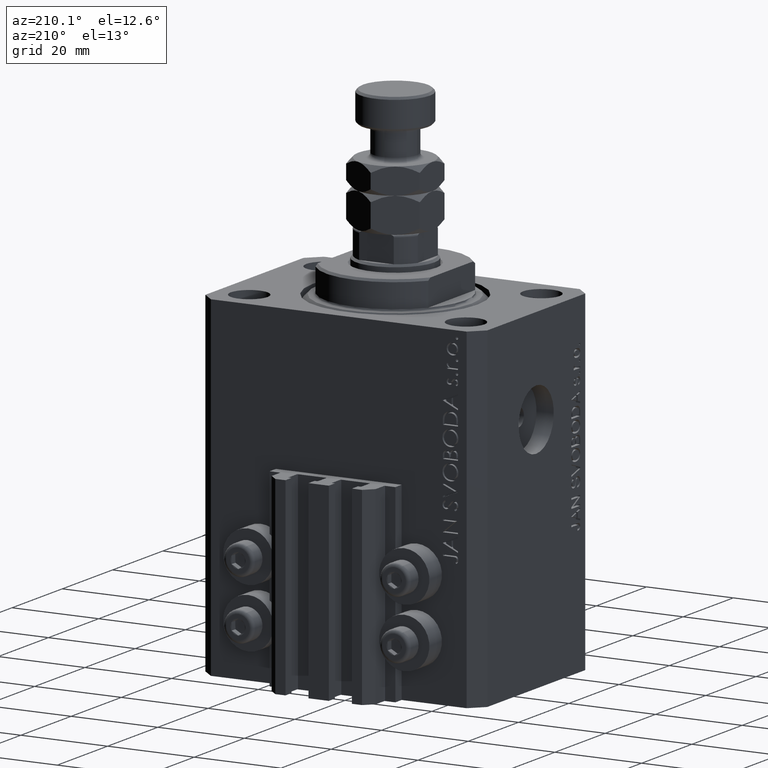
[diagram: clean part render]
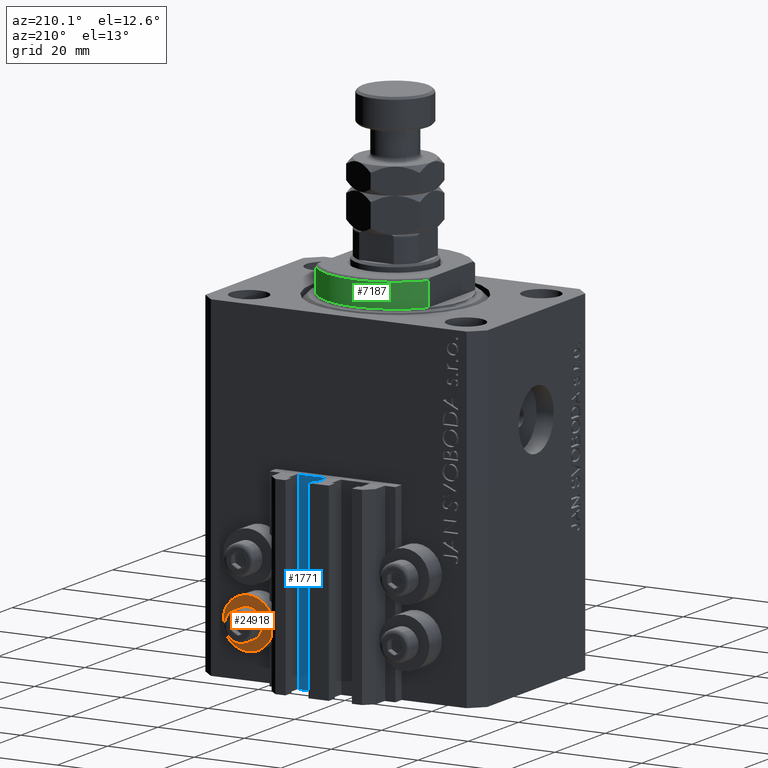
[diagram: same view with three faces highlighted in distinct colors, each labeled with its STEP entity id]
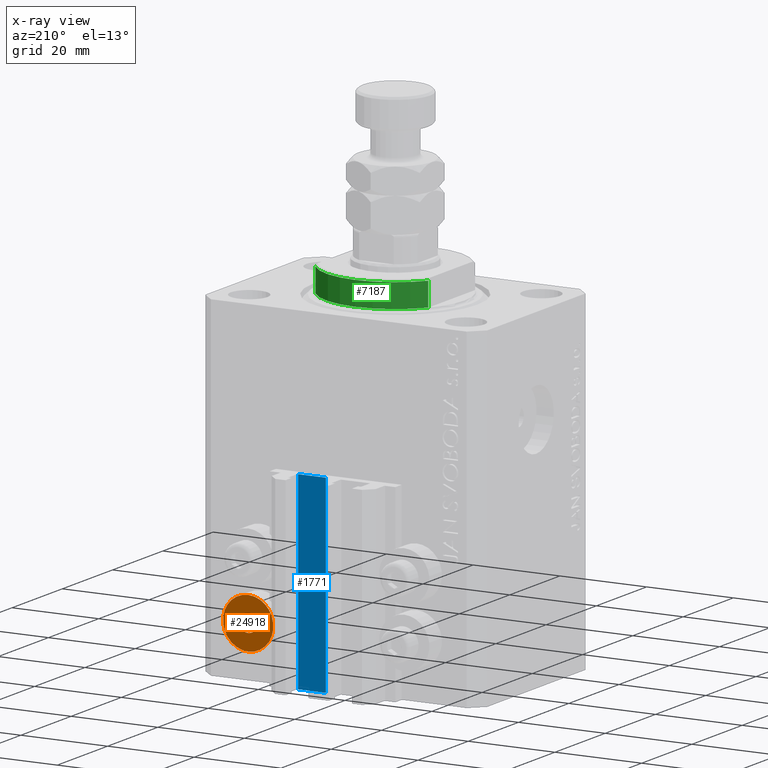
[diagram: x-ray of the same camera — body ghosted, the three highlighted faces saturated]
A machine part, auxiliary view with three faces highlighted in distinct colors.
The next image is the same camera in x-ray (body ghosted, the three faces saturated) — at least one of them is partly hidden behind the body in this view.
Their STEP definitions:

[orange] entity #24918 — the highlighted planar face has unit normal (0, -1, 0).
#29 = DIRECTION ( 'NONE',  ( 0.000000000000000000, 0.000000000000000000, -1.000000000000000000 ) ) ;
#640 = CIRCLE ( 'NONE', #30794, 2.000000000000001776 ) ;
#1529 = ORIENTED_EDGE ( 'NONE', *, *, #9022, .F. ) ;
#2904 = PLANE ( 'NONE',  #46904 ) ;
#3316 = CARTESIAN_POINT ( 'NONE',  ( 18.00000000000000355, 27.49999999996051514, -58.20000000000000284 ) ) ;
#3780 = AXIS2_PLACEMENT_3D ( 'NONE', #15403, #23101, #29 ) ;
#4173 = VERTEX_POINT ( 'NONE', #14786 ) ;
#8506 = ORIENTED_EDGE ( 'NONE', *, *, #22166, .T. ) ;
#8831 = CIRCLE ( 'NONE', #31838, 5.799999999999999822 ) ;
#9022 = EDGE_CURVE ( 'NONE', #9466, #32617, #40243, .T. ) ;
#9466 = VERTEX_POINT ( 'NONE', #15243 ) ;
#11349 = DIRECTION ( 'NONE',  ( 0.000000000000000000, -1.000000000000000000, 0.000000000000000000 ) ) ;
#11659 = CARTESIAN_POINT ( 'NONE',  ( 18.00000000000000355, 27.49999999996051514, -64.00000000000000000 ) ) ;
#13015 = DIRECTION ( 'NONE',  ( 0.000000000000000000, 1.000000000000000000, 0.000000000000000000 ) ) ;
#13245 = EDGE_CURVE ( 'NONE', #32617, #9466, #640, .T. ) ;
#14354 = AXIS2_PLACEMENT_3D ( 'NONE', #11659, #29531, #18340 ) ;
#14786 = CARTESIAN_POINT ( 'NONE',  ( 18.00000000000000355, 27.49999999996051514, -69.79999999999999716 ) ) ;
#15243 = CARTESIAN_POINT ( 'NONE',  ( 18.00000000000000355, 27.49999999996051514, -62.00000000000000000 ) ) ;
#15403 = CARTESIAN_POINT ( 'NONE',  ( 18.00000000000000355, 27.49999999996051514, -64.00000000000000000 ) ) ;
#15820 = EDGE_LOOP ( 'NONE', ( #20453, #8506 ) ) ;
#18031 = CARTESIAN_POINT ( 'NONE',  ( 12.20000000000000284, 27.49999999996051514, -64.00000000000000000 ) ) ;
#18340 = DIRECTION ( 'NONE',  ( 0.000000000000000000, 0.000000000000000000, -1.000000000000000000 ) ) ;
#20453 = ORIENTED_EDGE ( 'NONE', *, *, #24592, .T. ) ;
#22166 = EDGE_CURVE ( 'NONE', #39598, #4173, #8831, .T. ) ;
#23101 = DIRECTION ( 'NONE',  ( 0.000000000000000000, 1.000000000000000000, 0.000000000000000000 ) ) ;
#24592 = EDGE_CURVE ( 'NONE', #4173, #39598, #47675, .T. ) ;
#24918 = ADVANCED_FACE ( 'NONE', ( #37923, #48594 ), #2904, .F. ) ;
#28152 = DIRECTION ( 'NONE',  ( 0.000000000000000000, 0.000000000000000000, -1.000000000000000000 ) ) ;
#29531 = DIRECTION ( 'NONE',  ( 0.000000000000000000, 1.000000000000000000, 0.000000000000000000 ) ) ;
#30597 = DIRECTION ( 'NONE',  ( 0.000000000000000000, 0.000000000000000000, -1.000000000000000000 ) ) ;
#30794 = AXIS2_PLACEMENT_3D ( 'NONE', #34322, #41529, #30597 ) ;
#31838 = AXIS2_PLACEMENT_3D ( 'NONE', #31882, #13015, #28152 ) ;
#31882 = CARTESIAN_POINT ( 'NONE',  ( 18.00000000000000355, 27.49999999996051514, -64.00000000000000000 ) ) ;
#32617 = VERTEX_POINT ( 'NONE', #45329 ) ;
#33722 = EDGE_LOOP ( 'NONE', ( #1529, #40059 ) ) ;
#34322 = CARTESIAN_POINT ( 'NONE',  ( 18.00000000000000355, 27.49999999996051514, -64.00000000000000000 ) ) ;
#36923 = DIRECTION ( 'NONE',  ( -0.000000000000000000, 0.000000000000000000, 1.000000000000000000 ) ) ;
#37923 = FACE_BOUND ( 'NONE', #33722, .T. ) ;
#39598 = VERTEX_POINT ( 'NONE', #3316 ) ;
#40059 = ORIENTED_EDGE ( 'NONE', *, *, #13245, .F. ) ;
#40243 = CIRCLE ( 'NONE', #3780, 2.000000000000001776 ) ;
#41529 = DIRECTION ( 'NONE',  ( 0.000000000000000000, 1.000000000000000000, 0.000000000000000000 ) ) ;
#45329 = CARTESIAN_POINT ( 'NONE',  ( 18.00000000000000355, 27.49999999996051514, -66.00000000000000000 ) ) ;
#46904 = AXIS2_PLACEMENT_3D ( 'NONE', #18031, #11349, #36923 ) ;
#47675 = CIRCLE ( 'NONE', #14354, 5.799999999999999822 ) ;
#48594 = FACE_OUTER_BOUND ( 'NONE', #15820, .T. ) ;

[blue] entity #1771 — the highlighted planar face has unit normal (0, 1, 0).
#409 = DIRECTION ( 'NONE',  ( 0.000000000000000000, 0.000000000000000000, 1.000000000000000000 ) ) ;
#655 = FACE_OUTER_BOUND ( 'NONE', #48374, .T. ) ;
#1254 = ORIENTED_EDGE ( 'NONE', *, *, #18674, .F. ) ;
#1771 = ADVANCED_FACE ( 'NONE', ( #655 ), #46086, .T. ) ;
#4846 = ORIENTED_EDGE ( 'NONE', *, *, #8441, .T. ) ;
#4905 = VECTOR ( 'NONE', #35667, 1000.000000000000000 ) ;
#6567 = CARTESIAN_POINT ( 'NONE',  ( 8.200000000000001066, 24.49999999999949196, -77.00000000000000000 ) ) ;
#7199 = CARTESIAN_POINT ( 'NONE',  ( 8.200000000000001066, 24.49999999999949196, -33.00000000000000000 ) ) ;
#8188 = CARTESIAN_POINT ( 'NONE',  ( 8.200000000000001066, 24.49999999999949196, -33.00000000000000000 ) ) ;
#8441 = EDGE_CURVE ( 'NONE', #16907, #16743, #22540, .T. ) ;
#10001 = ORIENTED_EDGE ( 'NONE', *, *, #25918, .T. ) ;
#12063 = CARTESIAN_POINT ( 'NONE',  ( 8.200000000000001066, 24.49999999999949196, -77.00000000000000000 ) ) ;
#12344 = VERTEX_POINT ( 'NONE', #14322 ) ;
#13086 = CARTESIAN_POINT ( 'NONE',  ( 8.200000000000001066, 24.49999999999949196, -77.00000000000000000 ) ) ;
#14322 = CARTESIAN_POINT ( 'NONE',  ( 8.200000000000001066, 24.49999999999949196, -77.00000000000000000 ) ) ;
#15032 = ORIENTED_EDGE ( 'NONE', *, *, #38210, .F. ) ;
#16743 = VERTEX_POINT ( 'NONE', #23431 ) ;
#16907 = VERTEX_POINT ( 'NONE', #21143 ) ;
#18555 = DIRECTION ( 'NONE',  ( 0.000000000000000000, 0.000000000000000000, 1.000000000000000000 ) ) ;
#18674 = EDGE_CURVE ( 'NONE', #41856, #16743, #38238, .T. ) ;
#20211 = VECTOR ( 'NONE', #46136, 1000.000000000000000 ) ;
#20422 = VECTOR ( 'NONE', #18555, 1000.000000000000000 ) ;
#21143 = CARTESIAN_POINT ( 'NONE',  ( 1.800000000000000933, 24.49999999999949196, -77.00000000000000000 ) ) ;
#22540 = LINE ( 'NONE', #44900, #20422 ) ;
#23431 = CARTESIAN_POINT ( 'NONE',  ( 1.800000000000000933, 24.49999999999949196, -33.00000000000000000 ) ) ;
#25918 = EDGE_CURVE ( 'NONE', #12344, #16907, #40602, .T. ) ;
#27983 = AXIS2_PLACEMENT_3D ( 'NONE', #12063, #38880, #409 ) ;
#35667 = DIRECTION ( 'NONE',  ( -1.000000000000000000, 0.000000000000000000, 0.000000000000000000 ) ) ;
#38210 = EDGE_CURVE ( 'NONE', #12344, #41856, #47103, .T. ) ;
#38238 = LINE ( 'NONE', #8188, #45218 ) ;
#38880 = DIRECTION ( 'NONE',  ( 0.000000000000000000, 1.000000000000000000, -0.000000000000000000 ) ) ;
#40602 = LINE ( 'NONE', #6567, #4905 ) ;
#41856 = VERTEX_POINT ( 'NONE', #7199 ) ;
#41985 = DIRECTION ( 'NONE',  ( -1.000000000000000000, 0.000000000000000000, 0.000000000000000000 ) ) ;
#44900 = CARTESIAN_POINT ( 'NONE',  ( 1.800000000000000933, 24.49999999999949196, -77.00000000000000000 ) ) ;
#45218 = VECTOR ( 'NONE', #41985, 1000.000000000000000 ) ;
#46086 = PLANE ( 'NONE',  #27983 ) ;
#46136 = DIRECTION ( 'NONE',  ( 0.000000000000000000, 0.000000000000000000, 1.000000000000000000 ) ) ;
#47103 = LINE ( 'NONE', #13086, #20211 ) ;
#48374 = EDGE_LOOP ( 'NONE', ( #1254, #15032, #10001, #4846 ) ) ;

[green] entity #7187 — the highlighted cylindrical surface (partial cylindrical patch) has radius 16 mm, axis along (0, 0, -1).
#585 = ORIENTED_EDGE ( 'NONE', *, *, #9173, .F. ) ;
#4863 = EDGE_CURVE ( 'NONE', #42664, #42963, #37356, .T. ) ;
#4949 = VERTEX_POINT ( 'NONE', #30509 ) ;
#7187 = ADVANCED_FACE ( 'NONE', ( #36752 ), #18106, .T. ) ;
#9173 = EDGE_CURVE ( 'NONE', #42664, #35804, #11832, .T. ) ;
#9691 = DIRECTION ( 'NONE',  ( 1.000000000000000000, 0.000000000000000000, 0.000000000000000000 ) ) ;
#10464 = CARTESIAN_POINT ( 'NONE',  ( 13.00000000000000000, 9.327379053088815652, -0.4999999999999995559 ) ) ;
#11203 = AXIS2_PLACEMENT_3D ( 'NONE', #37217, #36968, #14373 ) ;
#11832 = LINE ( 'NONE', #12320, #21192 ) ;
#12030 = CARTESIAN_POINT ( 'NONE',  ( 13.00000000000000000, 9.327379053088916905, -6.000000000000014211 ) ) ;
#12320 = CARTESIAN_POINT ( 'NONE',  ( 13.00000000000000000, 9.327379053088813876, -6.500000000000000000 ) ) ;
#12698 = CARTESIAN_POINT ( 'NONE',  ( -13.00000000000000000, 9.327379053088916905, -6.000000000000014211 ) ) ;
#14373 = DIRECTION ( 'NONE',  ( -1.000000000000000000, 0.000000000000000000, 0.000000000000000000 ) ) ;
#17859 = DIRECTION ( 'NONE',  ( -0.000000000000000000, -0.000000000000000000, 1.000000000000000000 ) ) ;
#17953 = VECTOR ( 'NONE', #38350, 1000.000000000000000 ) ;
#18106 = CYLINDRICAL_SURFACE ( 'NONE', #45798, 16.00000000000000000 ) ;
#19066 = ORIENTED_EDGE ( 'NONE', *, *, #4863, .T. ) ;
#20188 = LINE ( 'NONE', #42574, #17953 ) ;
#20344 = EDGE_CURVE ( 'NONE', #4949, #35804, #27068, .T. ) ;
#21192 = VECTOR ( 'NONE', #27461, 1000.000000000000000 ) ;
#23473 = ORIENTED_EDGE ( 'NONE', *, *, #42583, .T. ) ;
#24678 = AXIS2_PLACEMENT_3D ( 'NONE', #31569, #42758, #31327 ) ;
#27068 = CIRCLE ( 'NONE', #24678, 16.00000000000000000 ) ;
#27461 = DIRECTION ( 'NONE',  ( -0.000000000000000000, -0.000000000000000000, 1.000000000000000000 ) ) ;
#28880 = ORIENTED_EDGE ( 'NONE', *, *, #20344, .T. ) ;
#30509 = CARTESIAN_POINT ( 'NONE',  ( -13.00000000000000000, 9.327379053088815652, -0.4999999999999995559 ) ) ;
#31327 = DIRECTION ( 'NONE',  ( 1.000000000000000000, -8.881784197001252323E-16, 0.000000000000000000 ) ) ;
#31569 = CARTESIAN_POINT ( 'NONE',  ( 0.000000000000000000, 0.000000000000000000, -0.4999999999999995559 ) ) ;
#33274 = CARTESIAN_POINT ( 'NONE',  ( 0.000000000000000000, 0.000000000000000000, -6.500000000000000000 ) ) ;
#35804 = VERTEX_POINT ( 'NONE', #10464 ) ;
#36283 = EDGE_LOOP ( 'NONE', ( #585, #19066, #23473, #28880 ) ) ;
#36752 = FACE_OUTER_BOUND ( 'NONE', #36283, .T. ) ;
#36968 = DIRECTION ( 'NONE',  ( 0.000000000000000000, 0.000000000000000000, 1.000000000000000000 ) ) ;
#37217 = CARTESIAN_POINT ( 'NONE',  ( 0.000000000000000000, 0.000000000000000000, -6.000000000000023981 ) ) ;
#37356 = CIRCLE ( 'NONE', #11203, 16.00000000000000000 ) ;
#38350 = DIRECTION ( 'NONE',  ( -0.000000000000000000, -0.000000000000000000, 1.000000000000000000 ) ) ;
#42574 = CARTESIAN_POINT ( 'NONE',  ( -13.00000000000000000, 9.327379053088813876, -6.500000000000000000 ) ) ;
#42583 = EDGE_CURVE ( 'NONE', #42963, #4949, #20188, .T. ) ;
#42664 = VERTEX_POINT ( 'NONE', #12030 ) ;
#42758 = DIRECTION ( 'NONE',  ( -0.000000000000000000, -0.000000000000000000, -1.000000000000000000 ) ) ;
#42963 = VERTEX_POINT ( 'NONE', #12698 ) ;
#45798 = AXIS2_PLACEMENT_3D ( 'NONE', #33274, #17859, #9691 ) ;